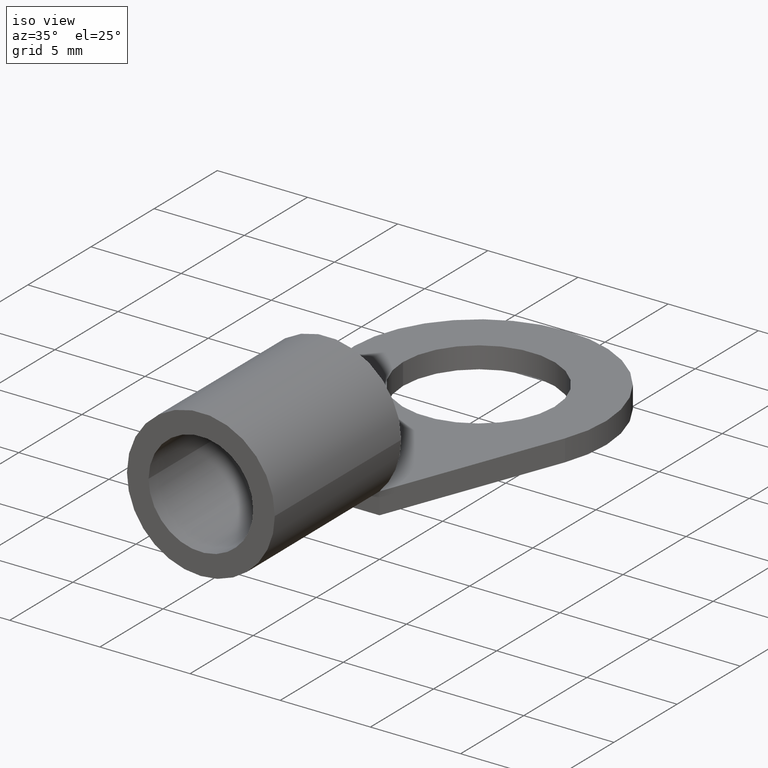
[diagram: clean part render]
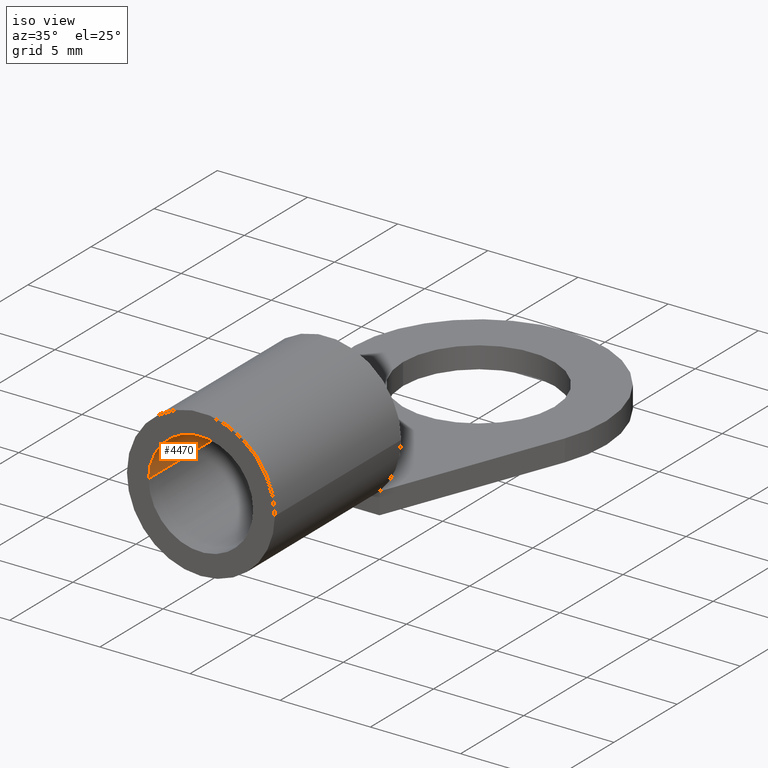
[diagram: same view with one face highlighted and labeled with its STEP entity id]
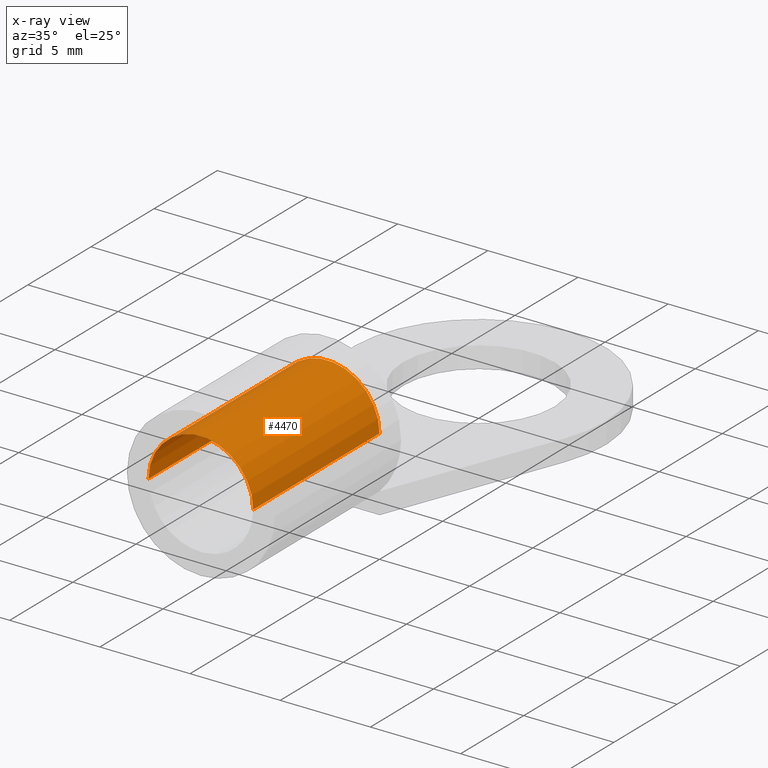
[diagram: x-ray of the same camera — body ghosted, the highlighted face saturated]
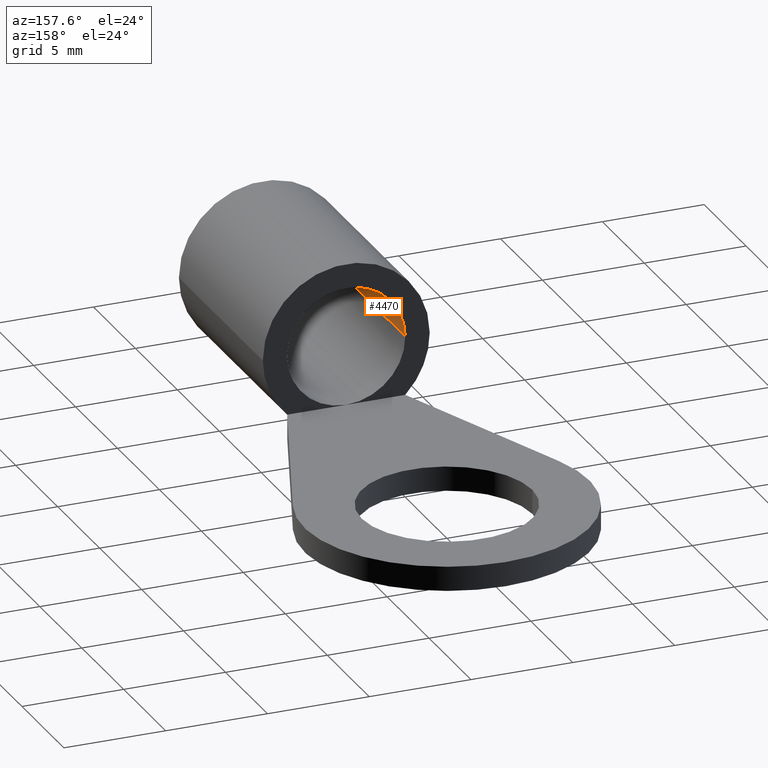
[diagram: same view with one face highlighted and labeled with its STEP entity id]
A machine part, iso view. The second image highlights one B-rep face of the part: STEP entity #4470.
The next image is the same camera in x-ray: the body ghosted, the highlighted face saturated — about 0% of this face is hidden behind the body in this view.
A second angle (auxiliary view) of the same face is appended — the face is thin or edge-on in the first view.
In plain terms, the highlighted cylindrical surface (partial cylindrical patch) has radius 2.9 mm, axis along (0, -1, -0).
Its self-contained STEP definition (entity closure, byte-faithful):
#1320=CARTESIAN_POINT('',(-4.30467366215757,212.270882107827,
123.755312333335));
#1330=DIRECTION('',(-0.98865447709775,0.148035752772574,
0.0254507527517702));
#1340=DIRECTION('',(0.150207606047678,0.974359518819134,
0.167514784935453));
#1350=AXIS2_PLACEMENT_3D('',#1320,#1330,#1340);
#1360=CIRCLE('',#1350,2.9);
#1370=CARTESIAN_POINT('',(-3.8690716046193,215.096524712402,
124.241105209648));
#1380=VERTEX_POINT('',#1370);
#1390=CARTESIAN_POINT('',(-4.74027571969584,209.445239503251,
123.269519457022));
#1400=VERTEX_POINT('',#1390);
#1410=EDGE_CURVE('',#1380,#1400,#1360,.T.);
#3120=CARTESIAN_POINT('',(-4.74027571969584,209.445239503251,
123.269519457022));
#3130=DIRECTION('',(-0.98865447709775,0.148035752772574,
0.0254507527517702));
#3140=VECTOR('',#3130,1.);
#3150=LINE('',#3120,#3140);
#3160=CARTESIAN_POINT('',(-14.6268204906733,210.925597030977,
123.52402698454));
#3170=VERTEX_POINT('',#3160);
#3180=EDGE_CURVE('',#1400,#3170,#3150,.T.);
#3220=CARTESIAN_POINT('',(-3.8690716046193,215.096524712402,
124.241105209648));
#3230=DIRECTION('',(-0.98865447709775,0.148035752772574,
0.0254507527517702));
#3240=VECTOR('',#3230,1.);
#3250=LINE('',#3220,#3240);
#3260=CARTESIAN_POINT('',(-13.7556163755968,216.576882240128,
124.495612737165));
#3270=VERTEX_POINT('',#3260);
#3280=EDGE_CURVE('',#1380,#3270,#3250,.T.);
#3300=CARTESIAN_POINT('',(-14.1912184331351,213.751239635553,
124.009819860852));
#3310=DIRECTION('',(-0.98865447709775,0.148035752772574,
0.0254507527517702));
#3320=DIRECTION('',(0.150207606047678,0.974359518819134,
0.167514784935453));
#3330=AXIS2_PLACEMENT_3D('',#3300,#3310,#3320);
#3340=CIRCLE('',#3330,2.9);
#4230=EDGE_CURVE('',#3270,#3170,#3340,.T.);
#4360=CARTESIAN_POINT('',(-4.30467366215757,212.270882107827,
123.755312333335));
#4370=DIRECTION('',(-0.98865447709775,0.148035752772574,
0.0254507527517702));
#4380=DIRECTION('',(0.150207606047678,0.974359518819134,
0.167514784935453));
#4390=AXIS2_PLACEMENT_3D('',#4360,#4370,#4380);
#4400=CYLINDRICAL_SURFACE('',#4390,2.9);
#4410=ORIENTED_EDGE('',*,*,#4230,.T.);
#4420=ORIENTED_EDGE('',*,*,#3280,.T.);
#4430=ORIENTED_EDGE('',*,*,#1410,.F.);
#4440=ORIENTED_EDGE('',*,*,#3180,.F.);
#4450=EDGE_LOOP('',(#4440,#4430,#4420,#4410));
#4460=FACE_OUTER_BOUND('',#4450,.T.);
#4470=ADVANCED_FACE('',(#4460),#4400,.F.);